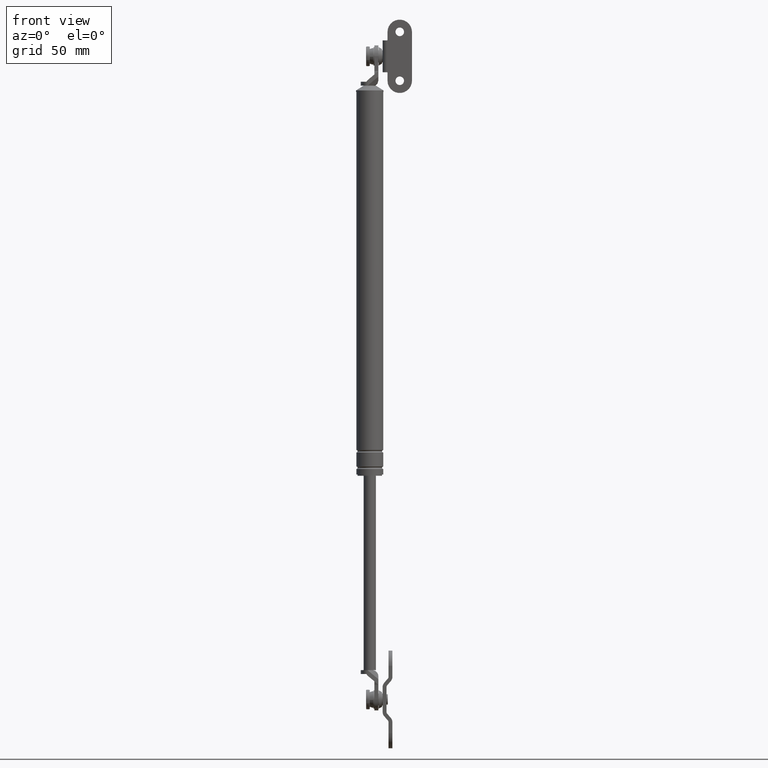
[diagram: clean part render]
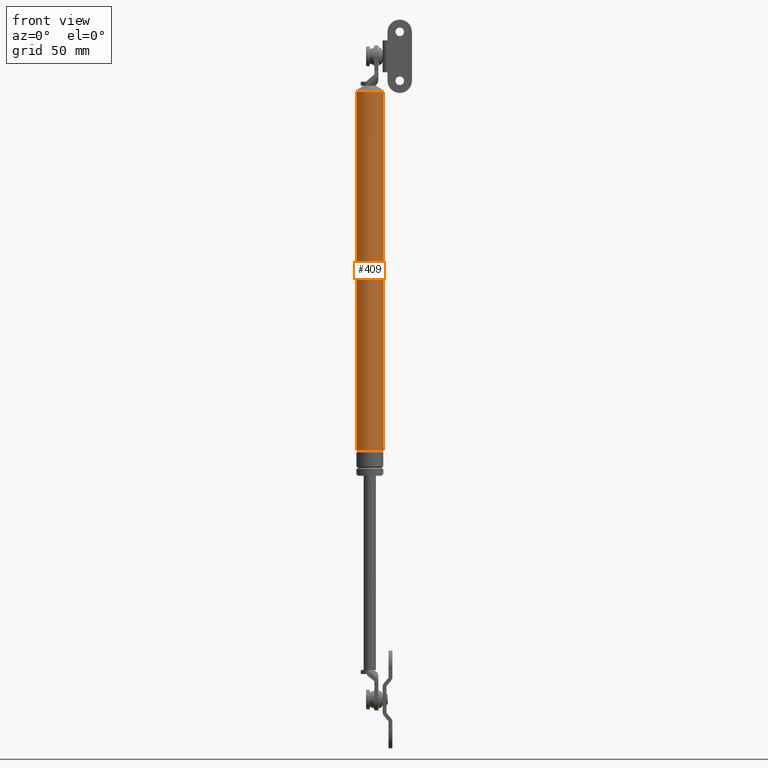
[diagram: same view with one face highlighted and labeled with its STEP entity id]
A machine part, front view. The second image highlights one B-rep face of the part: STEP entity #409.
In plain terms, the highlighted cylindrical surface (edge-blend (fillet) strip) has radius 11 mm, axis along (0, 0, 1).
Its self-contained STEP definition (entity closure, byte-faithful):
#409=ADVANCED_FACE('',(#1784),#1783,.T.);
#1783=CYLINDRICAL_SURFACE('',#3069,1.09999999738E+001);
#1784=FACE_OUTER_BOUND('',#3070,.T.);
#3066=CARTESIAN_POINT('',(-2.61800288115E-008,0.00000000000E+000,0.00000000000E+000));
#3067=DIRECTION('',(-0.00000000000E+000,-0.00000000000E+000,1.00000000000E+000));
#3068=DIRECTION('',(1.00000000000E+000,-0.00000000000E+000,-0.00000000000E+000));
#3069=AXIS2_PLACEMENT_3D('',#3066,#3067,#3068);
#3070=EDGE_LOOP('',(#4082,#4083,#4084,#4085));
#4082=ORIENTED_EDGE('',*,*,#4623,.F.);
#4083=ORIENTED_EDGE('',*,*,#4620,.T.);
#4084=ORIENTED_EDGE('',*,*,#4610,.F.);
#4085=ORIENTED_EDGE('',*,*,#4622,.F.);
#4610=EDGE_CURVE('',#6873,#6874,#6875,.T.);
#4620=EDGE_CURVE('',#6941,#6874,#6942,.T.);
#4622=EDGE_CURVE('',#6948,#6873,#6955,.T.);
#4623=EDGE_CURVE('',#6941,#6948,#6961,.T.);
#6873=VERTEX_POINT('',#8909);
#6874=VERTEX_POINT('',#8910);
#6875=CIRCLE('',#8914,1.09999999738E+001);
#6941=VERTEX_POINT('',#8953);
#6942=(BOUNDED_CURVE() B_SPLINE_CURVE(1,(#8954,#8955),.UNSPECIFIED.,.F.,.F.) B_SPLINE_CURVE_WITH_KNOTS((2,2),(3.19590923380E-002,9.68040907676E-001),.UNSPECIFIED.) CURVE() GEOMETRIC_REPRESENTATION_ITEM() RATIONAL_B_SPLINE_CURVE((1.00000000000E+000,1.00000000000E+000)) REPRESENTATION_ITEM('') );
#6948=VERTEX_POINT('',#8956);
#6955=(BOUNDED_CURVE() B_SPLINE_CURVE(1,(#8961,#8962),.UNSPECIFIED.,.F.,.F.) B_SPLINE_CURVE_WITH_KNOTS((2,2),(3.19590923618E-002,9.68040907638E-001),.UNSPECIFIED.) CURVE() GEOMETRIC_REPRESENTATION_ITEM() RATIONAL_B_SPLINE_CURVE((7.50000000000E-001,7.50000000000E-001)) REPRESENTATION_ITEM('') );
#6961=CIRCLE('',#8966,1.10000000524E+001);
#8909=CARTESIAN_POINT('',(-1.10000000000E+001,0.00000000000E+000,8.38999850000E+001));
#8910=CARTESIAN_POINT('',(1.09999999476E+001,1.18423789293E-015,8.38999850000E+001));
#8911=CARTESIAN_POINT('',(-2.61800288115E-008,0.00000000000E+000,8.38999850000E+001));
#8912=DIRECTION('',(0.00000000000E+000,0.00000000000E+000,1.00000000000E+000));
#8913=DIRECTION('',(-1.00000000000E+000,-1.22460635382E-016,0.00000000000E+000));
#8914=AXIS2_PLACEMENT_3D('',#8911,#8912,#8913);
#8953=CARTESIAN_POINT('',(1.10000000524E+001,-8.64493661841E-014,-2.09000015000E+002));
#8954=CARTESIAN_POINT('',(1.09999999476E+001,0.00000000000E+000,-2.09000015007E+002));
#8955=CARTESIAN_POINT('',(1.09999999476E+001,0.00000000000E+000,8.38999850118E+001));
#8956=CARTESIAN_POINT('',(-1.10000000524E+001,-8.79296635503E-014,-2.09000015000E+002));
#8961=CARTESIAN_POINT('',(-1.10000000000E+001,0.00000000000E+000,-2.09000015000E+002));
#8962=CARTESIAN_POINT('',(-1.10000000000E+001,0.00000000000E+000,8.38999850000E+001));
#8963=CARTESIAN_POINT('',(0.00000000000E+000,-8.79296635503E-014,-2.09000015000E+002));
#8964=DIRECTION('',(-0.00000000000E+000,0.00000000000E+000,-1.00000000000E+000));
#8965=DIRECTION('',(-1.00000000000E+000,-1.22460635382E-016,0.00000000000E+000));
#8966=AXIS2_PLACEMENT_3D('',#8963,#8964,#8965);